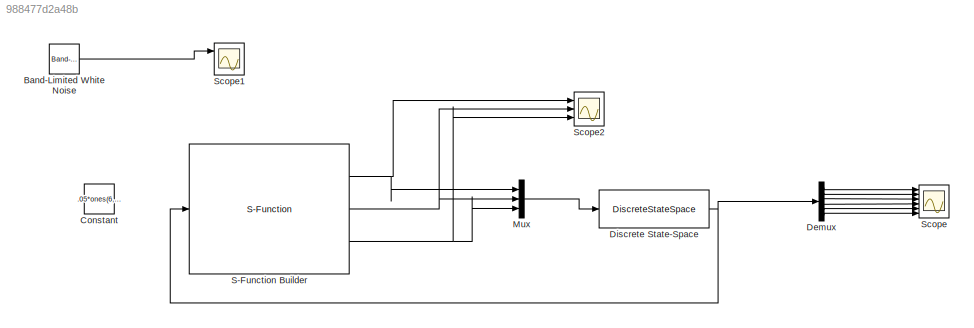
MODEL slx_988477d2a48b
KIND model
BLOCK [Reference] Band-Limited White Noise  REF=simulink/Sources/Band-Limited
White Noise
  Cov = [0.01,0.02,0.01,0.01,0.01,0.005]
  Ports = [0, 1]
  SourceBlock = simulink/Sources/Band-Limited\nWhite Noise
  SourceType = Band-Limited White Noise.
  Ts = 0.1
  VectorParams1D = on
  seed = [23341,13243,11231,27867,34551,12317]
BLOCK [Constant] Constant
  Value = .05*ones(6,1);
BLOCK [Demux] Demux
  DisplayOption = bar
  Outputs = 6
  Ports = [1, 6]
BLOCK [DiscreteStateSpace] Discrete State-Space
  A = sys_d.a
  B = sys_d.b
  C = sys_d.c
  D = sys_d.d
  SampleTime = h
  X0 = [10;10;10;0;0;0];
BLOCK [Mux] Mux
  DisplayOption = bar
  Inputs = 3
  Ports = [3, 1]
BLOCK [S-Function] S-Function Builder
  CopyFcn = set_param(gcbh,'LinkStatus','none')
  EnableBusSupport = off
  FunctionName = vance_optimization
  InitFcn = try, set_param(gcb,'FunctionName','vance_optimization'), end
  OpenFcn = sfunctionwizard(gcbh)
  Ports = [1, 3]
  PreSaveFcn = try, set_param(gcb,'FunctionName','vance_optimization'), end
  SFunctionModules = vance_optimization_wrapper ldl matrix_support solver util
BLOCK [Scope] Scope
  Floating = off
  NumInputPorts = 6
  Ports = [6]
  ShowLegends = off
  YMax = 5~5~5~5~5~5
  YMin = -5~-5~-5~-5~-5~-5
BLOCK [Scope] Scope1
  Floating = off
  NumInputPorts = 3
  Ports = [3]
  SaveName = ScopeData1
  ShowLegends = off
  YMax = 5~5~5
  YMin = -5~-5~-5
BLOCK [Scope] Scope2
  Floating = off
  NumInputPorts = 3
  Ports = [3]
  SaveName = ScopeData2
  ShowLegends = off
  YMax = 5~5~5
  YMin = -5~-5~-5
LINE Band-Limited White Noise:1 -> Scope1:1
LINE Demux:1 -> Scope:1
LINE Demux:2 -> Scope:2
LINE Demux:3 -> Scope:3
LINE Demux:4 -> Scope:4
LINE Demux:5 -> Scope:5
LINE Demux:6 -> Scope:6
NET Discrete State-Space:1 -> Demux:1, S-Function Builder:1
LINE Mux:1 -> Discrete State-Space:1
NET S-Function Builder:1 -> Mux:1, Scope2:1
NET S-Function Builder:2 -> Mux:2, Scope2:2
NET S-Function Builder:3 -> Mux:3, Scope2:3
note: NET lines group one-source signal fan-out (src -> all destinations, sorted); 1:1 wires keep LINE
